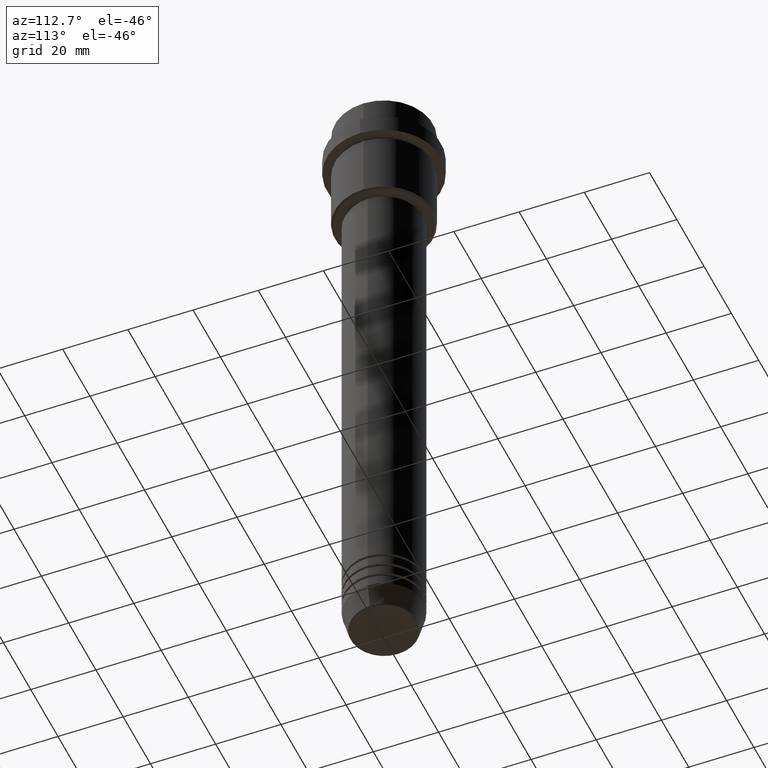
[diagram: clean part render]
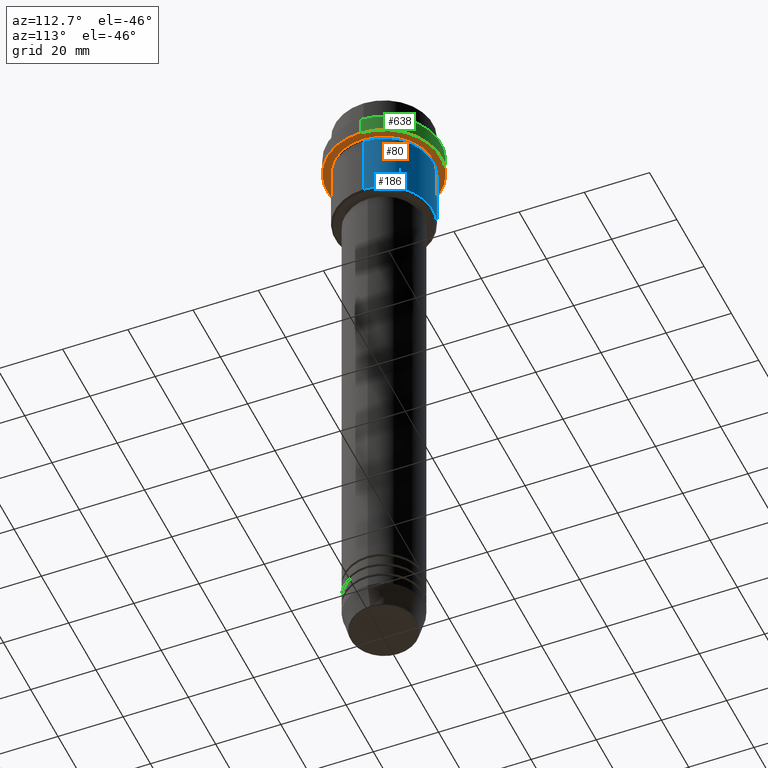
[diagram: same view with three faces highlighted in distinct colors, each labeled with its STEP entity id]
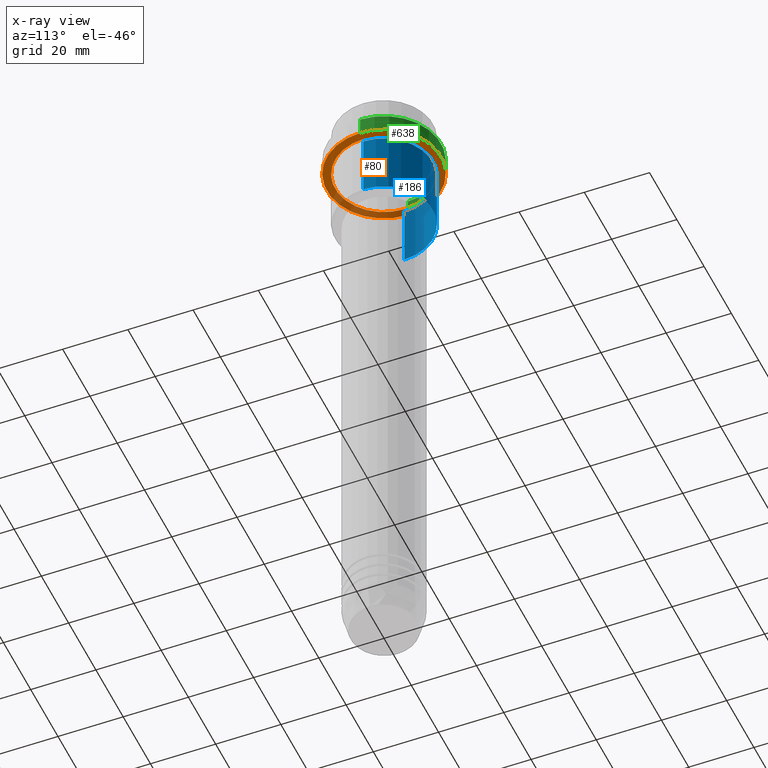
[diagram: x-ray of the same camera — body ghosted, the three highlighted faces saturated]
A machine part, auxiliary view with three faces highlighted in distinct colors.
The next image is the same camera in x-ray (body ghosted, the three faces saturated) — at least one of them is partly hidden behind the body in this view.
Their STEP definitions:

[orange] entity #80 — the highlighted planar face has unit normal (0, 0, -1).
#18 = DIRECTION ( 'NONE',  ( -1.000000000000000000, 0.000000000000000000, 0.000000000000000000 ) ) ;
#42 = VERTEX_POINT ( 'NONE', #1278 ) ;
#60 = DIRECTION ( 'NONE',  ( -0.000000000000000000, -0.000000000000000000, 1.000000000000000000 ) ) ;
#73 = CARTESIAN_POINT ( 'NONE',  ( 0.000000000000000000, 0.000000000000000000, -15.00000000000000000 ) ) ;
#79 = AXIS2_PLACEMENT_3D ( 'NONE', #1357, #60, #145 ) ;
#80 = ADVANCED_FACE ( 'NONE', ( #575, #243 ), #1120, .T. ) ;
#88 = AXIS2_PLACEMENT_3D ( 'NONE', #1225, #120, #18 ) ;
#110 = DIRECTION ( 'NONE',  ( 1.000000000000000000, 0.000000000000000000, 0.000000000000000000 ) ) ;
#120 = DIRECTION ( 'NONE',  ( -0.000000000000000000, -0.000000000000000000, 1.000000000000000000 ) ) ;
#145 = DIRECTION ( 'NONE',  ( 1.000000000000000000, 0.000000000000000000, 0.000000000000000000 ) ) ;
#159 = DIRECTION ( 'NONE',  ( -0.000000000000000000, -0.000000000000000000, 1.000000000000000000 ) ) ;
#202 = AXIS2_PLACEMENT_3D ( 'NONE', #73, #159, #1369 ) ;
#220 = DIRECTION ( 'NONE',  ( -0.000000000000000000, -0.000000000000000000, 1.000000000000000000 ) ) ;
#234 = ORIENTED_EDGE ( 'NONE', *, *, #295, .F. ) ;
#241 = AXIS2_PLACEMENT_3D ( 'NONE', #682, #340, #674 ) ;
#243 = FACE_OUTER_BOUND ( 'NONE', #756, .T. ) ;
#295 = EDGE_CURVE ( 'NONE', #42, #886, #729, .T. ) ;
#340 = DIRECTION ( 'NONE',  ( 0.000000000000000000, 0.000000000000000000, -1.000000000000000000 ) ) ;
#376 = AXIS2_PLACEMENT_3D ( 'NONE', #1411, #220, #110 ) ;
#406 = CIRCLE ( 'NONE', #88, 14.99999999999999467 ) ;
#476 = CARTESIAN_POINT ( 'NONE',  ( 14.99999999999999467, 1.836970198721029194E-15, -15.00000000000000000 ) ) ;
#538 = CIRCLE ( 'NONE', #202, 14.99999999999999467 ) ;
#548 = EDGE_CURVE ( 'NONE', #886, #42, #558, .T. ) ;
#558 = CIRCLE ( 'NONE', #376, 17.50000000000000000 ) ;
#575 = FACE_BOUND ( 'NONE', #1208, .T. ) ;
#631 = ORIENTED_EDGE ( 'NONE', *, *, #710, .T. ) ;
#643 = CARTESIAN_POINT ( 'NONE',  ( -17.50000000000000000, 2.143131898507868248E-15, -15.00000000000000000 ) ) ;
#650 = ORIENTED_EDGE ( 'NONE', *, *, #548, .F. ) ;
#653 = VERTEX_POINT ( 'NONE', #476 ) ;
#674 = DIRECTION ( 'NONE',  ( -1.000000000000000000, 0.000000000000000000, -0.000000000000000000 ) ) ;
#682 = CARTESIAN_POINT ( 'NONE',  ( 0.000000000000000000, 17.50000000000000000, -15.00000000000000000 ) ) ;
#684 = CARTESIAN_POINT ( 'NONE',  ( -14.99999999999999467, 0.000000000000000000, -15.00000000000000000 ) ) ;
#710 = EDGE_CURVE ( 'NONE', #972, #653, #538, .T. ) ;
#729 = CIRCLE ( 'NONE', #79, 17.50000000000000000 ) ;
#756 = EDGE_LOOP ( 'NONE', ( #234, #650 ) ) ;
#886 = VERTEX_POINT ( 'NONE', #643 ) ;
#972 = VERTEX_POINT ( 'NONE', #684 ) ;
#1022 = EDGE_CURVE ( 'NONE', #653, #972, #406, .T. ) ;
#1120 = PLANE ( 'NONE',  #241 ) ;
#1208 = EDGE_LOOP ( 'NONE', ( #631, #1285 ) ) ;
#1225 = CARTESIAN_POINT ( 'NONE',  ( 0.000000000000000000, 0.000000000000000000, -15.00000000000000000 ) ) ;
#1278 = CARTESIAN_POINT ( 'NONE',  ( 17.50000000000000000, 0.000000000000000000, -15.00000000000000000 ) ) ;
#1285 = ORIENTED_EDGE ( 'NONE', *, *, #1022, .T. ) ;
#1357 = CARTESIAN_POINT ( 'NONE',  ( 0.000000000000000000, 0.000000000000000000, -15.00000000000000000 ) ) ;
#1369 = DIRECTION ( 'NONE',  ( -1.000000000000000000, 0.000000000000000000, 0.000000000000000000 ) ) ;
#1411 = CARTESIAN_POINT ( 'NONE',  ( 0.000000000000000000, 0.000000000000000000, -15.00000000000000000 ) ) ;

[blue] entity #186 — the highlighted cylindrical surface (partial cylindrical patch) has radius 15 mm, axis along (-0, -0, 1).
#94 = DIRECTION ( 'NONE',  ( 1.000000000000000000, 0.000000000000000000, 0.000000000000000000 ) ) ;
#164 = DIRECTION ( 'NONE',  ( -0.000000000000000000, -0.000000000000000000, 1.000000000000000000 ) ) ;
#186 = ADVANCED_FACE ( 'NONE', ( #877 ), #788, .T. ) ;
#212 = ORIENTED_EDGE ( 'NONE', *, *, #720, .T. ) ;
#224 = CARTESIAN_POINT ( 'NONE',  ( 15.00000000000000178, 0.000000000000000000, -16.00000000000000000 ) ) ;
#297 = EDGE_CURVE ( 'NONE', #1271, #365, #1227, .T. ) ;
#364 = ORIENTED_EDGE ( 'NONE', *, *, #297, .T. ) ;
#365 = VERTEX_POINT ( 'NONE', #703 ) ;
#388 = LINE ( 'NONE', #1168, #399 ) ;
#399 = VECTOR ( 'NONE', #1274, 1000.000000000000000 ) ;
#426 = EDGE_LOOP ( 'NONE', ( #212, #364, #757, #692 ) ) ;
#473 = DIRECTION ( 'NONE',  ( -0.000000000000000000, -0.000000000000000000, 1.000000000000000000 ) ) ;
#534 = CARTESIAN_POINT ( 'NONE',  ( -15.00000000000000000, 1.836970198721029589E-15, -35.50000000000004263 ) ) ;
#679 = EDGE_CURVE ( 'NONE', #802, #1216, #388, .T. ) ;
#692 = ORIENTED_EDGE ( 'NONE', *, *, #679, .F. ) ;
#703 = CARTESIAN_POINT ( 'NONE',  ( -15.00000000000000355, 1.836970198721029983E-15, -16.00000000000000000 ) ) ;
#720 = EDGE_CURVE ( 'NONE', #802, #1271, #955, .T. ) ;
#757 = ORIENTED_EDGE ( 'NONE', *, *, #800, .F. ) ;
#777 = DIRECTION ( 'NONE',  ( -0.000000000000000000, -0.000000000000000000, 1.000000000000000000 ) ) ;
#788 = CYLINDRICAL_SURFACE ( 'NONE', #1214, 15.00000000000000000 ) ;
#800 = EDGE_CURVE ( 'NONE', #1216, #365, #1356, .T. ) ;
#802 = VERTEX_POINT ( 'NONE', #1404 ) ;
#877 = FACE_OUTER_BOUND ( 'NONE', #426, .T. ) ;
#901 = CARTESIAN_POINT ( 'NONE',  ( 0.000000000000000000, 0.000000000000000000, 0.000000000000000000 ) ) ;
#925 = DIRECTION ( 'NONE',  ( -1.000000000000000000, 0.000000000000000000, 0.000000000000000000 ) ) ;
#928 = AXIS2_PLACEMENT_3D ( 'NONE', #977, #985, #94 ) ;
#955 = CIRCLE ( 'NONE', #1071, 15.00000000000000000 ) ;
#977 = CARTESIAN_POINT ( 'NONE',  ( 0.000000000000000000, 0.000000000000000000, -16.00000000000000000 ) ) ;
#985 = DIRECTION ( 'NONE',  ( -0.000000000000000000, -0.000000000000000000, 1.000000000000000000 ) ) ;
#1071 = AXIS2_PLACEMENT_3D ( 'NONE', #1253, #164, #925 ) ;
#1151 = CARTESIAN_POINT ( 'NONE',  ( -15.00000000000000000, 1.836970198721029589E-15, 0.000000000000000000 ) ) ;
#1168 = CARTESIAN_POINT ( 'NONE',  ( 15.00000000000000000, 0.000000000000000000, 0.000000000000000000 ) ) ;
#1212 = DIRECTION ( 'NONE',  ( 1.000000000000000000, 0.000000000000000000, 0.000000000000000000 ) ) ;
#1214 = AXIS2_PLACEMENT_3D ( 'NONE', #901, #777, #1212 ) ;
#1216 = VERTEX_POINT ( 'NONE', #224 ) ;
#1227 = LINE ( 'NONE', #1151, #1282 ) ;
#1253 = CARTESIAN_POINT ( 'NONE',  ( 0.000000000000000000, 0.000000000000000000, -35.50000000000004263 ) ) ;
#1271 = VERTEX_POINT ( 'NONE', #534 ) ;
#1274 = DIRECTION ( 'NONE',  ( -0.000000000000000000, -0.000000000000000000, 1.000000000000000000 ) ) ;
#1282 = VECTOR ( 'NONE', #473, 1000.000000000000000 ) ;
#1356 = CIRCLE ( 'NONE', #928, 15.00000000000000178 ) ;
#1404 = CARTESIAN_POINT ( 'NONE',  ( 15.00000000000000000, 0.000000000000000000, -35.50000000000004263 ) ) ;

[green] entity #638 — the highlighted cylindrical surface (partial cylindrical patch) has radius 17.5 mm, axis along (-0, -0, 1).
#9 = DIRECTION ( 'NONE',  ( -0.000000000000000000, -0.000000000000000000, 1.000000000000000000 ) ) ;
#28 = VERTEX_POINT ( 'NONE', #740 ) ;
#42 = VERTEX_POINT ( 'NONE', #1278 ) ;
#60 = DIRECTION ( 'NONE',  ( -0.000000000000000000, -0.000000000000000000, 1.000000000000000000 ) ) ;
#79 = AXIS2_PLACEMENT_3D ( 'NONE', #1357, #60, #145 ) ;
#130 = LINE ( 'NONE', #677, #288 ) ;
#131 = EDGE_CURVE ( 'NONE', #42, #533, #139, .T. ) ;
#139 = LINE ( 'NONE', #987, #1376 ) ;
#144 = DIRECTION ( 'NONE',  ( -0.000000000000000000, -0.000000000000000000, 1.000000000000000000 ) ) ;
#145 = DIRECTION ( 'NONE',  ( 1.000000000000000000, 0.000000000000000000, 0.000000000000000000 ) ) ;
#252 = CYLINDRICAL_SURFACE ( 'NONE', #659, 17.50000000000000000 ) ;
#257 = DIRECTION ( 'NONE',  ( 0.000000000000000000, 0.000000000000000000, -1.000000000000000000 ) ) ;
#288 = VECTOR ( 'NONE', #791, 1000.000000000000000 ) ;
#295 = EDGE_CURVE ( 'NONE', #42, #886, #729, .T. ) ;
#323 = DIRECTION ( 'NONE',  ( 1.000000000000000000, 0.000000000000000000, 0.000000000000000000 ) ) ;
#444 = CIRCLE ( 'NONE', #1239, 17.50000000000000000 ) ;
#502 = EDGE_LOOP ( 'NONE', ( #549, #922, #596, #1373 ) ) ;
#533 = VERTEX_POINT ( 'NONE', #743 ) ;
#549 = ORIENTED_EDGE ( 'NONE', *, *, #295, .T. ) ;
#595 = EDGE_CURVE ( 'NONE', #28, #533, #444, .T. ) ;
#596 = ORIENTED_EDGE ( 'NONE', *, *, #595, .T. ) ;
#638 = ADVANCED_FACE ( 'NONE', ( #1334 ), #252, .T. ) ;
#643 = CARTESIAN_POINT ( 'NONE',  ( -17.50000000000000000, 2.143131898507868248E-15, -15.00000000000000000 ) ) ;
#659 = AXIS2_PLACEMENT_3D ( 'NONE', #1135, #144, #323 ) ;
#677 = CARTESIAN_POINT ( 'NONE',  ( -17.50000000000000000, 2.143131898507868248E-15, 0.000000000000000000 ) ) ;
#729 = CIRCLE ( 'NONE', #79, 17.50000000000000000 ) ;
#740 = CARTESIAN_POINT ( 'NONE',  ( -17.50000000000000000, 2.143131898507868248E-15, -9.500000000000026645 ) ) ;
#743 = CARTESIAN_POINT ( 'NONE',  ( 17.50000000000000000, 0.000000000000000000, -9.500000000000026645 ) ) ;
#791 = DIRECTION ( 'NONE',  ( -0.000000000000000000, -0.000000000000000000, 1.000000000000000000 ) ) ;
#882 = DIRECTION ( 'NONE',  ( 1.000000000000000000, 0.000000000000000000, 0.000000000000000000 ) ) ;
#886 = VERTEX_POINT ( 'NONE', #643 ) ;
#922 = ORIENTED_EDGE ( 'NONE', *, *, #1003, .T. ) ;
#987 = CARTESIAN_POINT ( 'NONE',  ( 17.50000000000000000, 0.000000000000000000, 0.000000000000000000 ) ) ;
#1003 = EDGE_CURVE ( 'NONE', #886, #28, #130, .T. ) ;
#1089 = CARTESIAN_POINT ( 'NONE',  ( 0.000000000000000000, 0.000000000000000000, -9.500000000000026645 ) ) ;
#1135 = CARTESIAN_POINT ( 'NONE',  ( 0.000000000000000000, 0.000000000000000000, 0.000000000000000000 ) ) ;
#1239 = AXIS2_PLACEMENT_3D ( 'NONE', #1089, #257, #882 ) ;
#1278 = CARTESIAN_POINT ( 'NONE',  ( 17.50000000000000000, 0.000000000000000000, -15.00000000000000000 ) ) ;
#1334 = FACE_OUTER_BOUND ( 'NONE', #502, .T. ) ;
#1357 = CARTESIAN_POINT ( 'NONE',  ( 0.000000000000000000, 0.000000000000000000, -15.00000000000000000 ) ) ;
#1373 = ORIENTED_EDGE ( 'NONE', *, *, #131, .F. ) ;
#1376 = VECTOR ( 'NONE', #9, 1000.000000000000000 ) ;